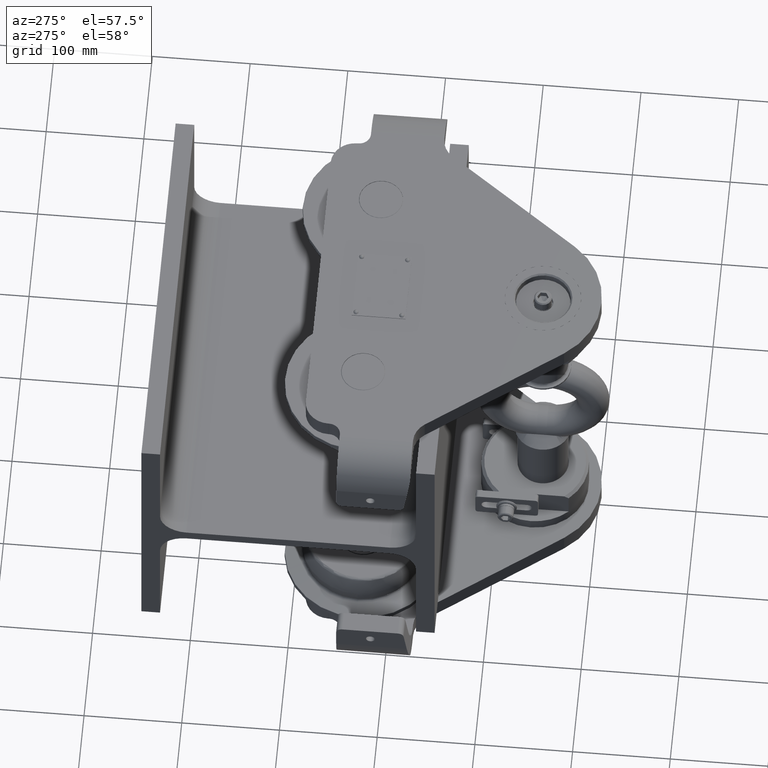
[diagram: clean part render]
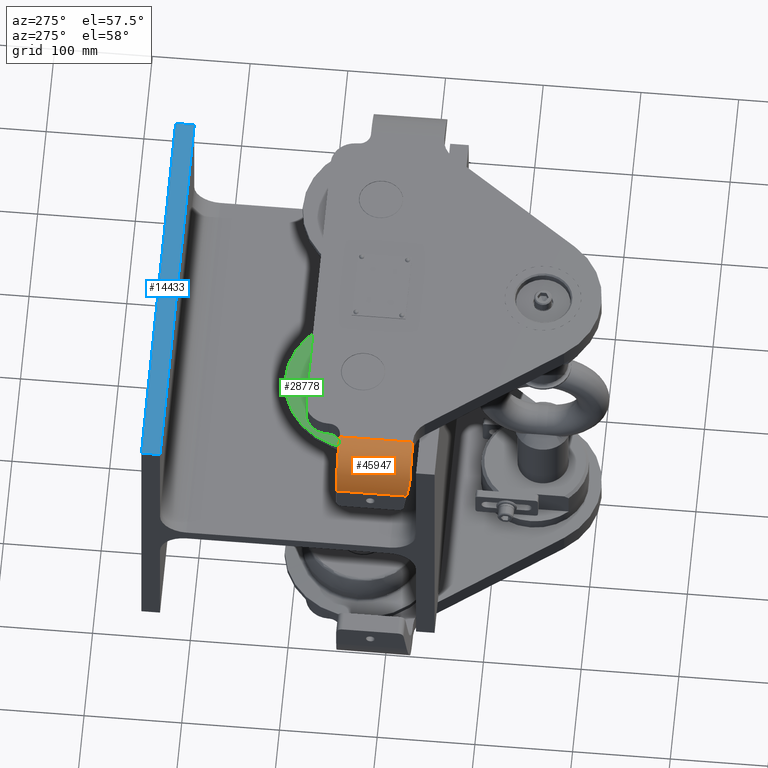
[diagram: same view with three faces highlighted in distinct colors, each labeled with its STEP entity id]
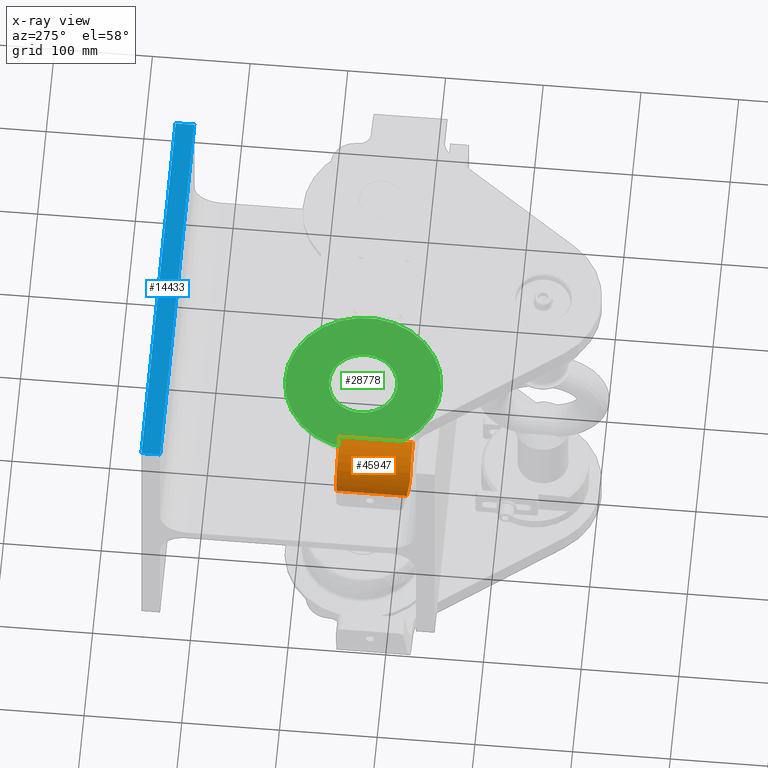
[diagram: x-ray of the same camera — body ghosted, the three highlighted faces saturated]
A machine part, auxiliary view with three faces highlighted in distinct colors.
The next image is the same camera in x-ray (body ghosted, the three faces saturated) — at least one of them is partly hidden behind the body in this view.
Their STEP definitions:

[orange] entity #45947 — the highlighted cylindrical surface (partial cylindrical patch) has radius 40 mm, axis along (0, 1, 0).
#2759 = CARTESIAN_POINT ( 'NONE',  ( -185.0000000000000600, -303.4999999999999400, 145.0000000000004300 ) ) ;
#3278 = LINE ( 'NONE', #40618, #10310 ) ;
#4909 = ORIENTED_EDGE ( 'NONE', *, *, #21677, .T. ) ;
#6666 = DIRECTION ( 'NONE',  ( 1.000000000000000000, 0.0000000000000000000, -6.938893903907227400E-016 ) ) ;
#6985 = CARTESIAN_POINT ( 'NONE',  ( -225.0000000000000300, -124.6817204175375900, 152.0622685121177500 ) ) ;
#10211 = EDGE_CURVE ( 'NONE', #30563, #24883, #34510, .T. ) ;
#10310 = VECTOR ( 'NONE', #50086, 1000.000000000000000 ) ;
#10344 = CARTESIAN_POINT ( 'NONE',  ( -185.0000000000000300, -51.49999999999989300, 145.0000000000004300 ) ) ;
#10453 = DIRECTION ( 'NONE',  ( 1.110223024625156300E-016, 1.000000000000000000, 0.0000000000000000000 ) ) ;
#10745 = VECTOR ( 'NONE', #11185, 1000.000000000000000 ) ;
#10903 = CARTESIAN_POINT ( 'NONE',  ( -219.6410161513776100, -126.4999999999999100, 165.0000000000004300 ) ) ;
#11185 = DIRECTION ( 'NONE',  ( 1.110223024625156300E-016, 1.000000000000000000, 0.0000000000000000000 ) ) ;
#11234 = CARTESIAN_POINT ( 'NONE',  ( -225.0000000000000300, -123.6891833059522400, 145.0000000000004500 ) ) ;
#12454 = FACE_OUTER_BOUND ( 'NONE', #26825, .T. ) ;
#12484 = CARTESIAN_POINT ( 'NONE',  ( -219.6410161513776100, -126.4999999999999100, 165.0000000000004300 ) ) ;
#14265 = CARTESIAN_POINT ( 'NONE',  ( -225.0000000000000300, -123.6891833059522400, 145.0000000000004500 ) ) ;
#14960 = CIRCLE ( 'NONE', #40763, 40.00000000000000700 ) ;
#17181 = AXIS2_PLACEMENT_3D ( 'NONE', #10344, #27511, #39289 ) ;
#19249 = CARTESIAN_POINT ( 'NONE',  ( -223.1721504074362200, -125.6404376471682300, 158.8838960601599400 ) ) ;
#19899 = ORIENTED_EDGE ( 'NONE', *, *, #25460, .T. ) ;
#21459 = VERTEX_POINT ( 'NONE', #52846 ) ;
#21677 = EDGE_CURVE ( 'NONE', #27697, #21459, #3278, .T. ) ;
#21851 = CIRCLE ( 'NONE', #17181, 40.00000000000000700 ) ;
#23456 = CYLINDRICAL_SURFACE ( 'NONE', #41503, 40.00000000000000700 ) ;
#24883 = VERTEX_POINT ( 'NONE', #14265 ) ;
#25460 = EDGE_CURVE ( 'NONE', #30563, #27697, #14960, .T. ) ;
#26825 = EDGE_LOOP ( 'NONE', ( #49412, #19899, #4909, #45027, #33919 ) ) ;
#27231 = CARTESIAN_POINT ( 'NONE',  ( -185.0000000000000300, -126.4999999999999400, 145.0000000000004300 ) ) ;
#27511 = DIRECTION ( 'NONE',  ( 8.571954515710514400E-016, -1.000000000000000000, -5.374688216894611400E-032 ) ) ;
#27697 = VERTEX_POINT ( 'NONE', #43854 ) ;
#30563 = VERTEX_POINT ( 'NONE', #12484 ) ;
#31325 = DIRECTION ( 'NONE',  ( 1.110223024625156300E-016, 1.000000000000000000, -0.0000000000000000000 ) ) ;
#33919 = ORIENTED_EDGE ( 'NONE', *, *, #42213, .F. ) ;
#34510 =( BOUNDED_CURVE ( )  B_SPLINE_CURVE ( 3, ( #10903, #19249, #6985, #11234 ),
 .UNSPECIFIED., .F., .F. ) 
 B_SPLINE_CURVE_WITH_KNOTS ( ( 4, 4 ),
 ( 4.188790204786391400, 4.712388980384688800 ),
 .UNSPECIFIED. ) 
 CURVE ( )  GEOMETRIC_REPRESENTATION_ITEM ( )  RATIONAL_B_SPLINE_CURVE ( ( 1.000000000000000000, 0.9772838841927123900, 0.9772838841927123900, 1.000000000000000000 ) ) 
 REPRESENTATION_ITEM ( '' )  );
#39289 = DIRECTION ( 'NONE',  ( -1.000000000000000000, -8.673617379884033500E-016, 0.0000000000000000000 ) ) ;
#40538 = CARTESIAN_POINT ( 'NONE',  ( -225.0000000000000000, -51.49999999999993600, 145.0000000000004300 ) ) ;
#40618 = CARTESIAN_POINT ( 'NONE',  ( -185.0000000000000600, -303.4999999999999400, 185.0000000000004500 ) ) ;
#40763 = AXIS2_PLACEMENT_3D ( 'NONE', #27231, #31325, #6666 ) ;
#41503 = AXIS2_PLACEMENT_3D ( 'NONE', #2759, #10453, #43285 ) ;
#42150 = LINE ( 'NONE', #44351, #10745 ) ;
#42213 = EDGE_CURVE ( 'NONE', #24883, #46642, #42150, .T. ) ;
#43285 = DIRECTION ( 'NONE',  ( -1.000000000000000000, 0.0000000000000000000, 0.0000000000000000000 ) ) ;
#43854 = CARTESIAN_POINT ( 'NONE',  ( -185.0000000000000300, -126.4999999999999400, 185.0000000000004500 ) ) ;
#44351 = CARTESIAN_POINT ( 'NONE',  ( -225.0000000000000600, -303.4999999999999400, 145.0000000000004300 ) ) ;
#45027 = ORIENTED_EDGE ( 'NONE', *, *, #50093, .T. ) ;
#45947 = ADVANCED_FACE ( 'NONE', ( #12454 ), #23456, .T. ) ;
#46642 = VERTEX_POINT ( 'NONE', #40538 ) ;
#49412 = ORIENTED_EDGE ( 'NONE', *, *, #10211, .F. ) ;
#50086 = DIRECTION ( 'NONE',  ( 1.110223024625156300E-016, 1.000000000000000000, 0.0000000000000000000 ) ) ;
#50093 = EDGE_CURVE ( 'NONE', #21459, #46642, #21851, .T. ) ;
#52846 = CARTESIAN_POINT ( 'NONE',  ( -185.0000000000000300, -51.49999999999989300, 185.0000000000004500 ) ) ;

[blue] entity #14433 — the highlighted planar face has unit normal (0, 0, 1).
#1446 = CARTESIAN_POINT ( 'NONE',  ( -199.9999999999999700, 130.9999999999999700, 150.0000000000000300 ) ) ;
#1638 = ORIENTED_EDGE ( 'NONE', *, *, #47692, .F. ) ;
#2463 = PLANE ( 'NONE',  #40385 ) ;
#2535 = CARTESIAN_POINT ( 'NONE',  ( 200.0000000000000300, 131.0000000000000300, 150.0000000000000000 ) ) ;
#2926 = DIRECTION ( 'NONE',  ( 1.000000000000000000, 1.110223024625156300E-016, -5.551115123125782700E-017 ) ) ;
#10545 = LINE ( 'NONE', #36702, #33048 ) ;
#13351 = ORIENTED_EDGE ( 'NONE', *, *, #30675, .F. ) ;
#14433 = ADVANCED_FACE ( 'NONE', ( #19435 ), #2463, .T. ) ;
#15452 = ORIENTED_EDGE ( 'NONE', *, *, #24994, .T. ) ;
#19435 = FACE_OUTER_BOUND ( 'NONE', #22155, .T. ) ;
#21786 = CARTESIAN_POINT ( 'NONE',  ( 200.0000000000000300, 150.0000000000000600, 150.0000000000000000 ) ) ;
#22155 = EDGE_LOOP ( 'NONE', ( #1638, #13351, #26232, #15452 ) ) ;
#23983 = DIRECTION ( 'NONE',  ( 0.0000000000000000000, -1.000000000000000000, 2.329890535377840800E-016 ) ) ;
#24994 = EDGE_CURVE ( 'NONE', #29343, #36587, #46797, .T. ) ;
#25727 = VERTEX_POINT ( 'NONE', #21786 ) ;
#25764 = CARTESIAN_POINT ( 'NONE',  ( -199.9999999999999700, 150.0000000000000000, 150.0000000000000300 ) ) ;
#26232 = ORIENTED_EDGE ( 'NONE', *, *, #39410, .T. ) ;
#27621 = CARTESIAN_POINT ( 'NONE',  ( -199.9999999999999700, 130.9999999999999700, 150.0000000000000300 ) ) ;
#29343 = VERTEX_POINT ( 'NONE', #1446 ) ;
#30675 = EDGE_CURVE ( 'NONE', #32436, #25727, #41358, .T. ) ;
#31239 = DIRECTION ( 'NONE',  ( 5.551115123125780200E-017, 2.179890634030890900E-016, 1.000000000000000000 ) ) ;
#32436 = VERTEX_POINT ( 'NONE', #25764 ) ;
#33048 = VECTOR ( 'NONE', #40771, 1000.000000000000000 ) ;
#35470 = VECTOR ( 'NONE', #50162, 1000.000000000000000 ) ;
#36587 = VERTEX_POINT ( 'NONE', #2535 ) ;
#36702 = CARTESIAN_POINT ( 'NONE',  ( -199.9999999999999700, 150.0000000000000000, 150.0000000000000300 ) ) ;
#38391 = CARTESIAN_POINT ( 'NONE',  ( -199.9999999999999700, 150.0000000000000000, 150.0000000000000300 ) ) ;
#38531 = VECTOR ( 'NONE', #2926, 1000.000000000000000 ) ;
#39410 = EDGE_CURVE ( 'NONE', #32436, #29343, #10545, .T. ) ;
#40385 = AXIS2_PLACEMENT_3D ( 'NONE', #51777, #31239, #47485 ) ;
#40771 = DIRECTION ( 'NONE',  ( 0.0000000000000000000, -1.000000000000000000, 2.329890535377840800E-016 ) ) ;
#41358 = LINE ( 'NONE', #38391, #35470 ) ;
#43939 = VECTOR ( 'NONE', #23983, 1000.000000000000000 ) ;
#44551 = LINE ( 'NONE', #52754, #43939 ) ;
#46797 = LINE ( 'NONE', #27621, #38531 ) ;
#47485 = DIRECTION ( 'NONE',  ( -1.000000000000000000, -1.110223024625156300E-016, 5.551115123125782700E-017 ) ) ;
#47692 = EDGE_CURVE ( 'NONE', #25727, #36587, #44551, .T. ) ;
#50162 = DIRECTION ( 'NONE',  ( 1.000000000000000000, 1.110223024625156300E-016, -5.551115123125782700E-017 ) ) ;
#51777 = CARTESIAN_POINT ( 'NONE',  ( -199.9999999999999700, 150.0000000000000000, 150.0000000000000300 ) ) ;
#52754 = CARTESIAN_POINT ( 'NONE',  ( 200.0000000000000300, 150.0000000000000600, 150.0000000000000000 ) ) ;

[green] entity #28778 — the highlighted planar face has unit normal (0, 0, -1).
#1103 = DIRECTION ( 'NONE',  ( -4.535348335754367300E-017, -6.073464467589028900E-016, 1.000000000000000000 ) ) ;
#2029 = AXIS2_PLACEMENT_3D ( 'NONE', #42688, #12744, #10048 ) ;
#2975 = EDGE_CURVE ( 'NONE', #16996, #39265, #10162, .T. ) ;
#5067 = PLANE ( 'NONE',  #28015 ) ;
#7411 = EDGE_LOOP ( 'NONE', ( #46328, #40918 ) ) ;
#9654 = DIRECTION ( 'NONE',  ( 0.9237280213470677700, 0.3830490080632386100, 0.0000000000000000000 ) ) ;
#10048 = DIRECTION ( 'NONE',  ( -0.9237280213470677700, -0.3830490080632386600, -3.482506350768998600E-016 ) ) ;
#10162 = CIRCLE ( 'NONE', #2029, 79.69999999999998900 ) ;
#10461 = EDGE_LOOP ( 'NONE', ( #30386, #15744 ) ) ;
#12607 = CIRCLE ( 'NONE', #30954, 35.00000000000001400 ) ;
#12744 = DIRECTION ( 'NONE',  ( -4.535348335754367300E-017, -6.073464467589028900E-016, 1.000000000000000000 ) ) ;
#12865 = FACE_OUTER_BOUND ( 'NONE', #10461, .T. ) ;
#15067 = CARTESIAN_POINT ( 'NONE',  ( -30.87887669863873100, -37.97099405735987400, 162.0000000000003400 ) ) ;
#15414 = CARTESIAN_POINT ( 'NONE',  ( -104.5000000000000300, -68.50000000000000000, 162.0000000000003100 ) ) ;
#15744 = ORIENTED_EDGE ( 'NONE', *, *, #2975, .T. ) ;
#15980 = CARTESIAN_POINT ( 'NONE',  ( -136.8304807471473900, -81.90671528221335500, 162.0000000000003100 ) ) ;
#16068 = CARTESIAN_POINT ( 'NONE',  ( -178.1211233013613100, -99.02900594264012600, 162.0000000000002800 ) ) ;
#16167 = EDGE_CURVE ( 'NONE', #31243, #32883, #23509, .T. ) ;
#16996 = VERTEX_POINT ( 'NONE', #15067 ) ;
#17140 = EDGE_CURVE ( 'NONE', #32883, #31243, #12607, .T. ) ;
#17159 = CARTESIAN_POINT ( 'NONE',  ( -104.5000000000000300, -68.50000000000000000, 162.0000000000003100 ) ) ;
#18120 = FACE_BOUND ( 'NONE', #7411, .T. ) ;
#20652 = CARTESIAN_POINT ( 'NONE',  ( -72.16951925285263800, -55.09328471778664500, 162.0000000000003100 ) ) ;
#21647 = DIRECTION ( 'NONE',  ( -0.9237280213470677700, -0.3830490080632386600, -3.482506350768998600E-016 ) ) ;
#23509 = CIRCLE ( 'NONE', #24025, 35.00000000000001400 ) ;
#24025 = AXIS2_PLACEMENT_3D ( 'NONE', #37888, #1103, #9654 ) ;
#25186 = AXIS2_PLACEMENT_3D ( 'NONE', #17159, #25617, #21647 ) ;
#25226 = EDGE_CURVE ( 'NONE', #39265, #16996, #26320, .T. ) ;
#25617 = DIRECTION ( 'NONE',  ( -4.535348335754367300E-017, -6.073464467589028900E-016, 1.000000000000000000 ) ) ;
#26320 = CIRCLE ( 'NONE', #25186, 79.69999999999998900 ) ;
#28015 = AXIS2_PLACEMENT_3D ( 'NONE', #33437, #41261, #37577 ) ;
#28778 = ADVANCED_FACE ( 'NONE', ( #12865, #18120 ), #5067, .F. ) ;
#30386 = ORIENTED_EDGE ( 'NONE', *, *, #25226, .T. ) ;
#30954 = AXIS2_PLACEMENT_3D ( 'NONE', #15414, #44770, #48183 ) ;
#31243 = VERTEX_POINT ( 'NONE', #20652 ) ;
#32883 = VERTEX_POINT ( 'NONE', #15980 ) ;
#33437 = CARTESIAN_POINT ( 'NONE',  ( -117.9067152822133700, -36.16951925285263100, 162.0000000000003400 ) ) ;
#37577 = DIRECTION ( 'NONE',  ( -0.9237280213470678800, -0.3830490080632387200, -2.745377374247913200E-016 ) ) ;
#37888 = CARTESIAN_POINT ( 'NONE',  ( -104.5000000000000300, -68.50000000000000000, 162.0000000000003100 ) ) ;
#39265 = VERTEX_POINT ( 'NONE', #16068 ) ;
#40918 = ORIENTED_EDGE ( 'NONE', *, *, #17140, .F. ) ;
#41261 = DIRECTION ( 'NONE',  ( 4.535348335754366100E-017, 6.073464467589028900E-016, -1.000000000000000000 ) ) ;
#42688 = CARTESIAN_POINT ( 'NONE',  ( -104.5000000000000300, -68.50000000000000000, 162.0000000000003100 ) ) ;
#44770 = DIRECTION ( 'NONE',  ( -4.535348335754367300E-017, -6.073464467589028900E-016, 1.000000000000000000 ) ) ;
#46328 = ORIENTED_EDGE ( 'NONE', *, *, #16167, .F. ) ;
#48183 = DIRECTION ( 'NONE',  ( 0.9237280213470677700, 0.3830490080632386100, 0.0000000000000000000 ) ) ;